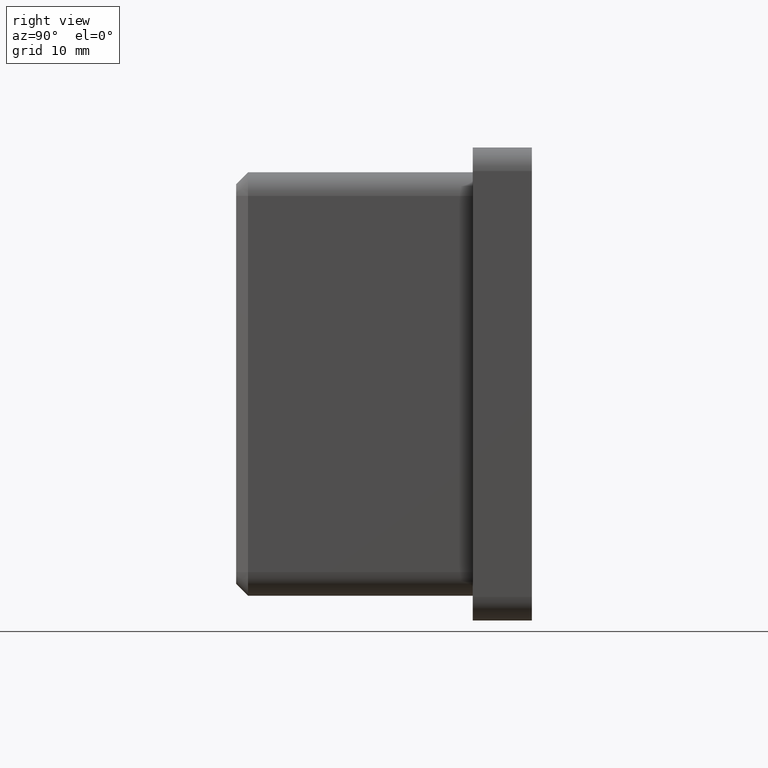
[diagram: clean part render]
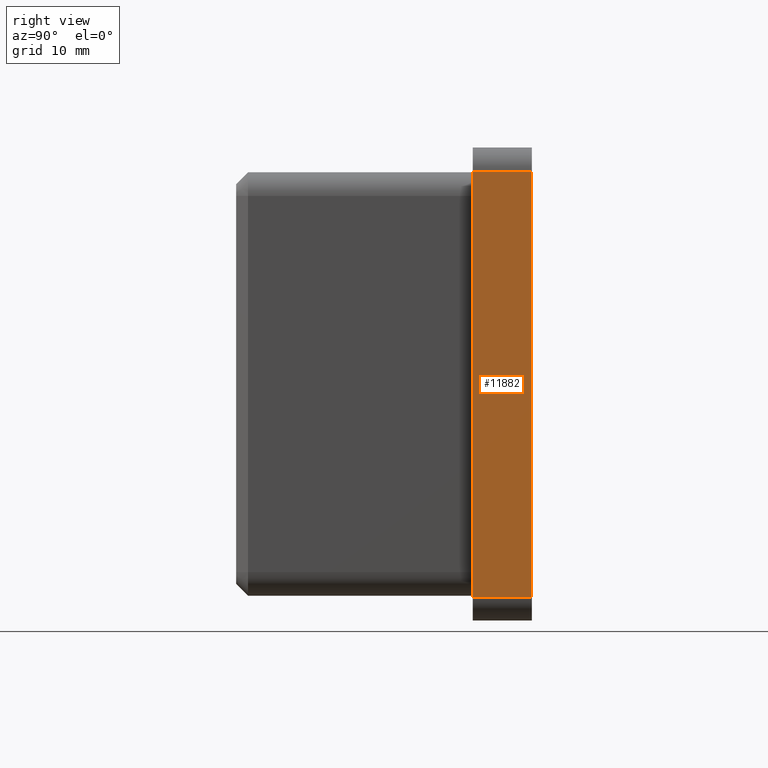
[diagram: same view with one face highlighted and labeled with its STEP entity id]
A machine part, right view. The second image highlights one B-rep face of the part: STEP entity #11882.
In plain terms, the highlighted planar face has unit normal (-1, 0, 0).
Its self-contained STEP definition (entity closure, byte-faithful):
#233 = LINE ( 'NONE', #2169, #9851 ) ;
#567 = VECTOR ( 'NONE', #4516, 1000.000000000000000 ) ;
#611 = EDGE_CURVE ( 'NONE', #2271, #12172, #233, .T. ) ;
#1084 = EDGE_CURVE ( 'NONE', #2330, #2271, #8798, .T. ) ;
#1962 = DIRECTION ( 'NONE',  ( 0.0000000000000000000, -1.000000000000000000, 0.0000000000000000000 ) ) ;
#2169 = CARTESIAN_POINT ( 'NONE',  ( 20.00000000000000000, 5.000000000000000000, -18.00000000000000400 ) ) ;
#2271 = VERTEX_POINT ( 'NONE', #9783 ) ;
#2330 = VERTEX_POINT ( 'NONE', #4258 ) ;
#2500 = CARTESIAN_POINT ( 'NONE',  ( 20.00000000000000000, 5.000000000000000000, -18.00000000000000400 ) ) ;
#3237 = ORIENTED_EDGE ( 'NONE', *, *, #1084, .T. ) ;
#3372 = VECTOR ( 'NONE', #1962, 1000.000000000000000 ) ;
#3515 = ORIENTED_EDGE ( 'NONE', *, *, #611, .T. ) ;
#4258 = CARTESIAN_POINT ( 'NONE',  ( 20.00000000000000700, 0.0000000000000000000, 18.00000000000000700 ) ) ;
#4385 = ORIENTED_EDGE ( 'NONE', *, *, #10101, .F. ) ;
#4516 = DIRECTION ( 'NONE',  ( -1.734723475976807100E-016, -0.0000000000000000000, -1.000000000000000000 ) ) ;
#4738 = CARTESIAN_POINT ( 'NONE',  ( 20.00000000000000000, 5.000000000000000000, -20.00000000000000000 ) ) ;
#5203 = DIRECTION ( 'NONE',  ( -1.000000000000000000, 0.0000000000000000000, 1.734723475976807100E-016 ) ) ;
#5346 = CARTESIAN_POINT ( 'NONE',  ( 20.00000000000000700, 5.000000000000000000, 18.00000000000000700 ) ) ;
#5494 = EDGE_CURVE ( 'NONE', #11883, #2330, #12294, .T. ) ;
#5690 = CARTESIAN_POINT ( 'NONE',  ( 20.00000000000000000, 0.0000000000000000000, -20.00000000000000000 ) ) ;
#6297 = PLANE ( 'NONE',  #7705 ) ;
#6446 = CARTESIAN_POINT ( 'NONE',  ( 20.00000000000000700, 5.000000000000000000, 18.00000000000000700 ) ) ;
#6968 = DIRECTION ( 'NONE',  ( -1.734723475976807100E-016, -0.0000000000000000000, -1.000000000000000000 ) ) ;
#7705 = AXIS2_PLACEMENT_3D ( 'NONE', #13151, #5203, #11866 ) ;
#8393 = ORIENTED_EDGE ( 'NONE', *, *, #5494, .T. ) ;
#8798 = LINE ( 'NONE', #5690, #567 ) ;
#9353 = EDGE_LOOP ( 'NONE', ( #3237, #3515, #4385, #8393 ) ) ;
#9751 = VECTOR ( 'NONE', #6968, 1000.000000000000000 ) ;
#9783 = CARTESIAN_POINT ( 'NONE',  ( 20.00000000000000000, 0.0000000000000000000, -18.00000000000000400 ) ) ;
#9851 = VECTOR ( 'NONE', #12686, 1000.000000000000000 ) ;
#10101 = EDGE_CURVE ( 'NONE', #11883, #12172, #13231, .T. ) ;
#11866 = DIRECTION ( 'NONE',  ( 1.734723475976807100E-016, 0.0000000000000000000, 1.000000000000000000 ) ) ;
#11882 = ADVANCED_FACE ( 'NONE', ( #12001 ), #6297, .F. ) ;
#11883 = VERTEX_POINT ( 'NONE', #5346 ) ;
#12001 = FACE_OUTER_BOUND ( 'NONE', #9353, .T. ) ;
#12172 = VERTEX_POINT ( 'NONE', #2500 ) ;
#12294 = LINE ( 'NONE', #6446, #3372 ) ;
#12686 = DIRECTION ( 'NONE',  ( -0.0000000000000000000, 1.000000000000000000, -0.0000000000000000000 ) ) ;
#13151 = CARTESIAN_POINT ( 'NONE',  ( 20.00000000000000000, 5.000000000000000000, -20.00000000000000000 ) ) ;
#13231 = LINE ( 'NONE', #4738, #9751 ) ;